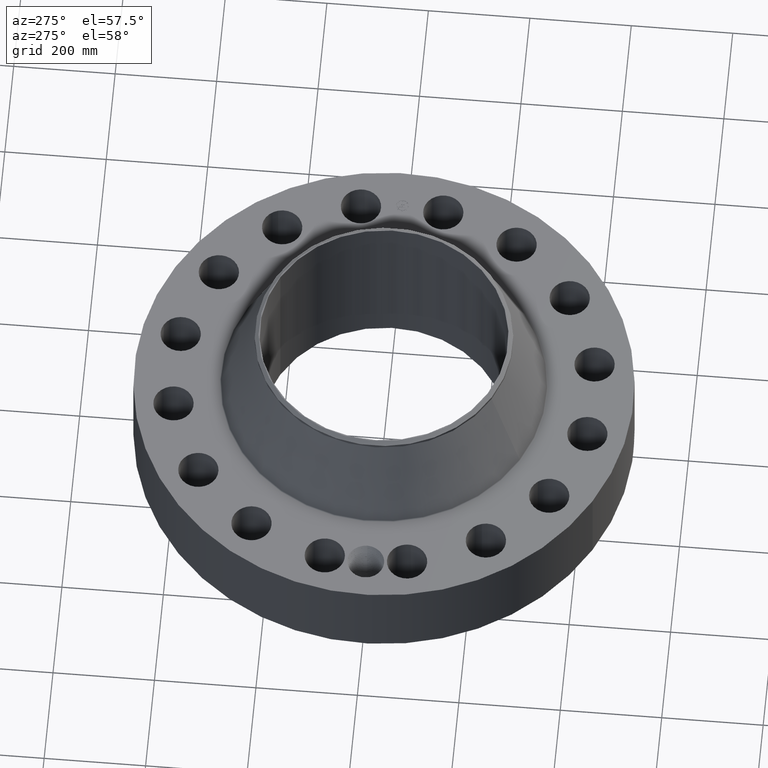
[diagram: clean part render]
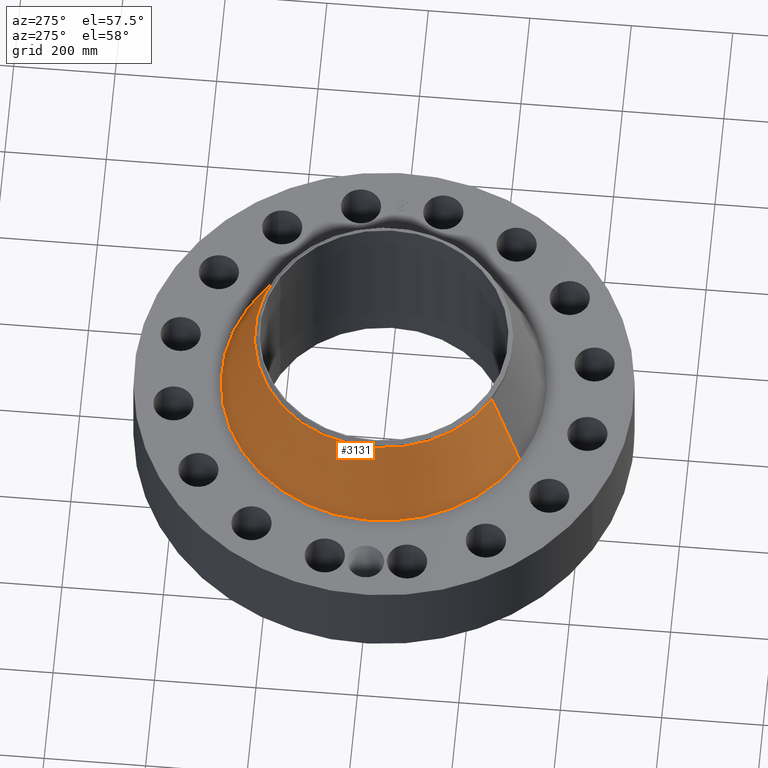
[diagram: same view with one face highlighted and labeled with its STEP entity id]
A machine part, auxiliary view. The second image highlights one B-rep face of the part: STEP entity #3131.
In plain terms, the highlighted conical surface has half-angle 21.88 deg.
Its self-contained STEP definition (entity closure, byte-faithful):
#2367=AXIS2_PLACEMENT_3D('Circle Axis2P3D',#2365,#2366,$) ;
#3092=AXIS2_PLACEMENT_3D('Cone Axis2P3D',#3089,#3090,#3091) ;
#3122=AXIS2_PLACEMENT_3D('Circle Axis2P3D',#3120,#3121,$) ;
#2343=CARTESIAN_POINT('Vertex',(6.03825340539,11.0529487192,7.32528013734)) ;
#2350=CARTESIAN_POINT('Vertex',(-6.03825340539,-11.0529487192,7.32528013734)) ;
#2365=CARTESIAN_POINT('Axis2P3D Location',(0.,0.,7.32528013734)) ;
#3089=CARTESIAN_POINT('Axis2P3D Location',(0.,0.,13.786451355)) ;
#3094=CARTESIAN_POINT('Line Origine',(5.41625439572,9.91438716905,10.5558657462)) ;
#3098=CARTESIAN_POINT('Vertex',(4.79425538606,8.77582561894,13.786451355)) ;
#3105=CARTESIAN_POINT('Vertex',(-4.79425538606,-8.77582561894,13.786451355)) ;
#3108=CARTESIAN_POINT('Line Origine',(-5.41625439572,-9.91438716905,10.5558657462)) ;
#3120=CARTESIAN_POINT('Axis2P3D Location',(0.,0.,13.786451355)) ;
#2366=DIRECTION('Axis2P3D Direction',(0.,0.,-0.0393700787402)) ;
#3090=DIRECTION('Axis2P3D Direction',(0.,0.,-0.0393700787402)) ;
#3091=DIRECTION('Axis2P3D XDirection',(-0.0188750212049,-0.0345504945626,0.)) ;
#3095=DIRECTION('Vector Direction',(0.00703406963738,0.0128757781049,-0.0365340841207)) ;
#3109=DIRECTION('Vector Direction',(-0.00703406963738,-0.0128757781049,-0.0365340841207)) ;
#3121=DIRECTION('Axis2P3D Direction',(0.,0.,-0.0393700787402)) ;
#3096=VECTOR('Line Direction',#3095,0.0393700787402) ;
#3110=VECTOR('Line Direction',#3109,0.0393700787402) ;
#3126=ORIENTED_EDGE('',*,*,#2369,.F.) ;
#3127=ORIENTED_EDGE('',*,*,#3112,.T.) ;
#3128=ORIENTED_EDGE('',*,*,#3124,.T.) ;
#3129=ORIENTED_EDGE('',*,*,#3100,.F.) ;
#3131=ADVANCED_FACE('PartBody',(#3130),#3093,.T.) ;
#2368=CIRCLE('generated circle',#2367,12.5947679445) ;
#3123=CIRCLE('generated circle',#3122,10.) ;
#3093=CONICAL_SURFACE('Cone',#3092,10.,0.381879806004) ;
#2369=EDGE_CURVE('',#2351,#2344,#2368,.T.) ;
#3100=EDGE_CURVE('',#2344,#3099,#3097,.F.) ;
#3112=EDGE_CURVE('',#2351,#3106,#3111,.F.) ;
#3124=EDGE_CURVE('',#3106,#3099,#3123,.T.) ;
#3125=EDGE_LOOP('',(#3126,#3127,#3128,#3129)) ;
#3130=FACE_OUTER_BOUND('',#3125,.T.) ;
#3097=LINE('Line',#3094,#3096) ;
#3111=LINE('Line',#3108,#3110) ;
#2344=VERTEX_POINT('',#2343) ;
#2351=VERTEX_POINT('',#2350) ;
#3099=VERTEX_POINT('',#3098) ;
#3106=VERTEX_POINT('',#3105) ;